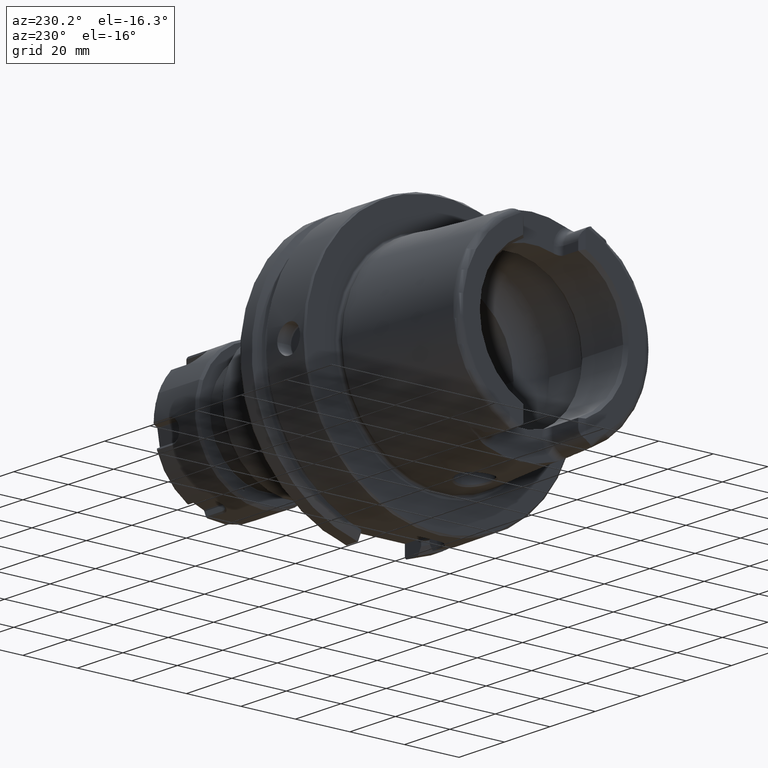
[diagram: clean part render]
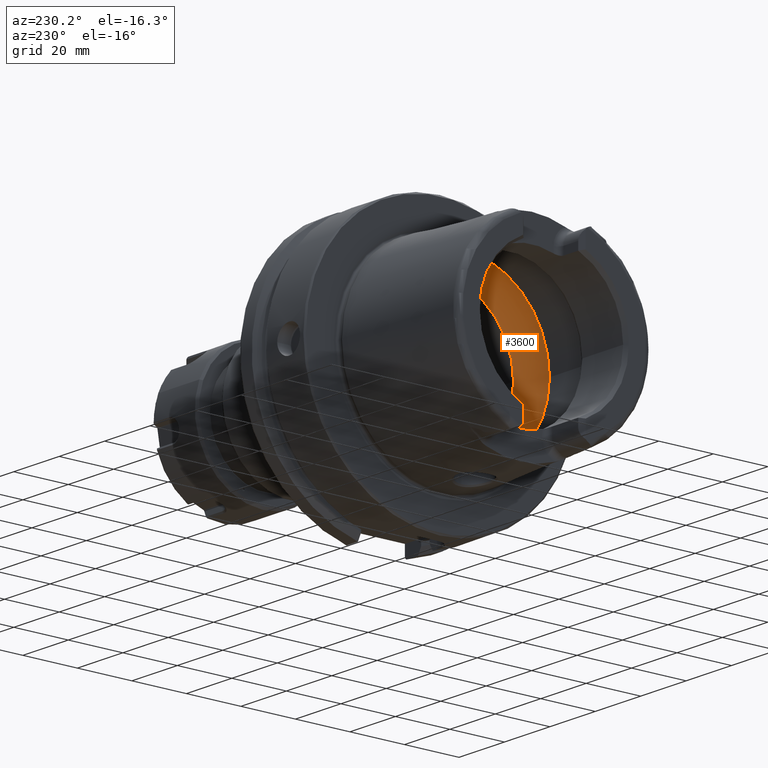
[diagram: same view with one face highlighted and labeled with its STEP entity id]
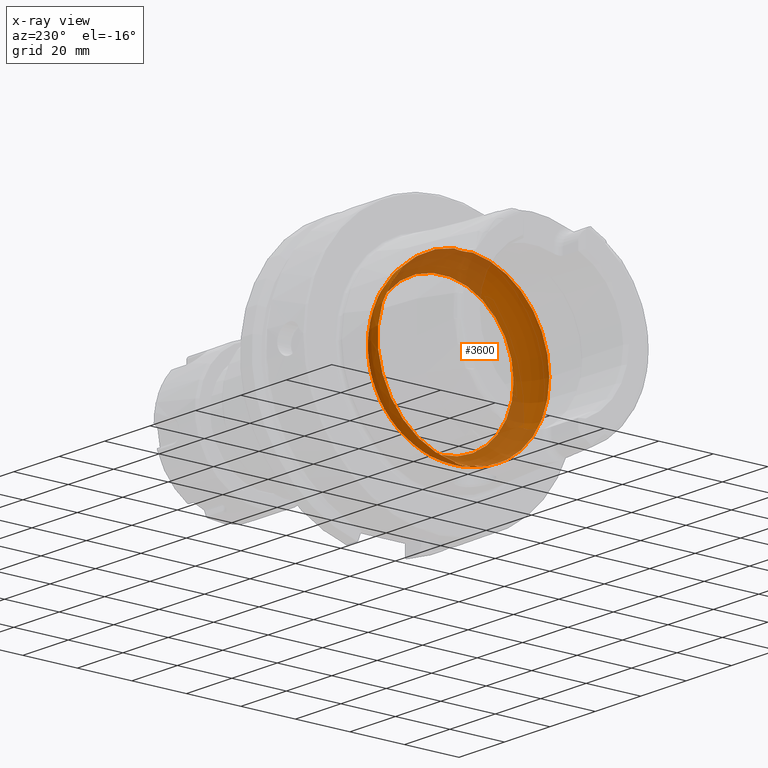
[diagram: x-ray of the same camera — body ghosted, the highlighted face saturated]
A machine part, auxiliary view. The second image highlights one B-rep face of the part: STEP entity #3600.
The next image is the same camera in x-ray: the body ghosted, the highlighted face saturated — about 37% of this face is hidden behind the body in this view.
In plain terms, the highlighted toroidal blend (fillet) surface has major radius 19.5 mm and minor (blend) radius 12 mm.
Its self-contained STEP definition (entity closure, byte-faithful):
#77=B_SPLINE_CURVE_WITH_KNOTS('',3,(#5994,#5995,#5996,#5997,#5998,#5999,
#6000,#6001,#6002,#6003),.UNSPECIFIED.,.F.,.F.,(4,2,2,2,4),(-0.704306975532235,
-0.563368317577754,-0.446049375641081,-0.386534165165624,-0.352317223799877),
 .UNSPECIFIED.);
#79=B_SPLINE_CURVE_WITH_KNOTS('',3,(#6036,#6037,#6038,#6039,#6040,#6041,
#6042,#6043,#6044,#6045),.UNSPECIFIED.,.F.,.F.,(4,2,2,2,4),(-0.352317223799877,
-0.339935606805379,-0.289031750490702,-0.208814277120691,0.),
 .UNSPECIFIED.);
#82=B_SPLINE_CURVE_WITH_KNOTS('',3,(#6186,#6187,#6188,#6189,#6190,#6191,
#6192,#6193,#6194,#6195),.UNSPECIFIED.,.F.,.F.,(4,2,2,2,4),(-0.704306975532881,
-0.563368317578124,-0.446049375641235,-0.386534165165663,-0.352317223799864),
 .UNSPECIFIED.);
#84=B_SPLINE_CURVE_WITH_KNOTS('',3,(#6228,#6229,#6230,#6231,#6232,#6233,
#6234,#6235,#6236,#6237),.UNSPECIFIED.,.F.,.F.,(4,2,2,2,4),(-0.352317223799864,
-0.339935606805357,-0.289031750490679,-0.208814277120681,0.),
 .UNSPECIFIED.);
#307=TOROIDAL_SURFACE('',#3937,19.5,12.);
#376=FACE_OUTER_BOUND('',#588,.T.);
#588=EDGE_LOOP('',(#2577,#2578,#2579,#2580,#2581,#2582,#2583,#2584,#2585,
#2586,#2587,#2588));
#1213=CIRCLE('',#3931,31.5);
#1217=CIRCLE('',#3935,31.5);
#1218=CIRCLE('',#3936,31.5);
#1219=CIRCLE('',#3938,26.5);
#1220=CIRCLE('',#3939,26.5);
#1221=CIRCLE('',#3940,26.5);
#1222=CIRCLE('',#3941,12.);
#1499=VERTEX_POINT('',#5991);
#1500=VERTEX_POINT('',#5993);
#1501=VERTEX_POINT('',#6004);
#1504=VERTEX_POINT('',#6184);
#1505=VERTEX_POINT('',#6185);
#1506=VERTEX_POINT('',#6196);
#1508=VERTEX_POINT('',#6242);
#1512=VERTEX_POINT('',#6254);
#1513=VERTEX_POINT('',#6255);
#1514=VERTEX_POINT('',#6257);
#1911=EDGE_CURVE('',#1500,#1499,#77,.T.);
#1913=EDGE_CURVE('',#1499,#1501,#79,.T.);
#1917=EDGE_CURVE('',#1504,#1505,#82,.T.);
#1919=EDGE_CURVE('',#1505,#1506,#84,.T.);
#1922=EDGE_CURVE('',#1508,#1504,#1213,.T.);
#1927=EDGE_CURVE('',#1501,#1508,#1217,.T.);
#1928=EDGE_CURVE('',#1506,#1500,#1218,.T.);
#1929=EDGE_CURVE('',#1512,#1513,#1219,.T.);
#1930=EDGE_CURVE('',#1514,#1512,#1220,.T.);
#1931=EDGE_CURVE('',#1513,#1514,#1221,.T.);
#1932=EDGE_CURVE('',#1513,#1499,#1222,.T.);
#2577=ORIENTED_EDGE('',*,*,#1929,.F.);
#2578=ORIENTED_EDGE('',*,*,#1930,.F.);
#2579=ORIENTED_EDGE('',*,*,#1931,.F.);
#2580=ORIENTED_EDGE('',*,*,#1932,.T.);
#2581=ORIENTED_EDGE('',*,*,#1913,.T.);
#2582=ORIENTED_EDGE('',*,*,#1927,.T.);
#2583=ORIENTED_EDGE('',*,*,#1922,.T.);
#2584=ORIENTED_EDGE('',*,*,#1917,.T.);
#2585=ORIENTED_EDGE('',*,*,#1919,.T.);
#2586=ORIENTED_EDGE('',*,*,#1928,.T.);
#2587=ORIENTED_EDGE('',*,*,#1911,.T.);
#2588=ORIENTED_EDGE('',*,*,#1932,.F.);
#3600=ADVANCED_FACE('',(#376),#307,.F.);
#3931=AXIS2_PLACEMENT_3D('',#6243,#4526,#4527);
#3935=AXIS2_PLACEMENT_3D('',#6251,#4535,#4536);
#3936=AXIS2_PLACEMENT_3D('',#6252,#4537,#4538);
#3937=AXIS2_PLACEMENT_3D('',#6253,#4539,#4540);
#3938=AXIS2_PLACEMENT_3D('',#6256,#4541,#4542);
#3939=AXIS2_PLACEMENT_3D('',#6258,#4543,#4544);
#3940=AXIS2_PLACEMENT_3D('',#6259,#4545,#4546);
#3941=AXIS2_PLACEMENT_3D('',#6260,#4547,#4548);
#4526=DIRECTION('center_axis',(-1.,0.,0.));
#4527=DIRECTION('ref_axis',(0.,0.,1.));
#4535=DIRECTION('center_axis',(-1.,0.,0.));
#4536=DIRECTION('ref_axis',(0.,0.,1.));
#4537=DIRECTION('center_axis',(-1.,0.,0.));
#4538=DIRECTION('ref_axis',(0.,0.,1.));
#4539=DIRECTION('center_axis',(-1.,0.,0.));
#4540=DIRECTION('ref_axis',(0.,0.,1.));
#4541=DIRECTION('center_axis',(-1.,0.,0.));
#4542=DIRECTION('ref_axis',(0.,0.,1.));
#4543=DIRECTION('center_axis',(-1.,0.,0.));
#4544=DIRECTION('ref_axis',(0.,0.,1.));
#4545=DIRECTION('center_axis',(-1.,0.,0.));
#4546=DIRECTION('ref_axis',(0.,0.,1.));
#4547=DIRECTION('center_axis',(0.,1.,-1.22464679914735E-16));
#4548=DIRECTION('ref_axis',(0.,-1.22464679914735E-16,-1.));
#5991=CARTESIAN_POINT('',(-9.,7.31685969699336E-16,-31.4582607431014));
#5993=CARTESIAN_POINT('',(-10.,3.31662479035542,-31.3249102153542));
#5994=CARTESIAN_POINT('Ctrl Pts',(-10.,3.31662479035541,-31.3249102153542));
#5995=CARTESIAN_POINT('Ctrl Pts',(-9.74127936765642,2.9265887617158,-31.3662065240371));
#5996=CARTESIAN_POINT('Ctrl Pts',(-9.52862762836098,2.50688318043554,-31.3949925235713));
#5997=CARTESIAN_POINT('Ctrl Pts',(-9.23240476385999,1.69927856892452,-31.4324255053116));
#5998=CARTESIAN_POINT('Ctrl Pts',(-9.13392344910017,1.31988974241601,-31.4435429781858));
#5999=CARTESIAN_POINT('Ctrl Pts',(-9.04220079429722,0.737558982965052,-31.4537190708018));
#6000=CARTESIAN_POINT('Ctrl Pts',(-9.02106779489129,0.540134132990375,-31.4559959808551));
#6001=CARTESIAN_POINT('Ctrl Pts',(-9.00325309475839,0.228126507331767,-31.4579131546092));
#6002=CARTESIAN_POINT('Ctrl Pts',(-9.,0.114070256385601,-31.4582607431014));
#6003=CARTESIAN_POINT('Ctrl Pts',(-9.,6.93889390390723E-16,-31.4582607431014));
#6004=CARTESIAN_POINT('',(-10.,-3.31662479035542,-31.3249102153542));
#6036=CARTESIAN_POINT('Ctrl Pts',(-9.,7.01335490450834E-16,-31.4582607431014));
#6037=CARTESIAN_POINT('Ctrl Pts',(-9.,-0.0412770448981316,-31.4582607431014));
#6038=CARTESIAN_POINT('Ctrl Pts',(-9.0004259501075,-0.0825559236689198,
-31.4582151361457));
#6039=CARTESIAN_POINT('Ctrl Pts',(-9.00478075477959,-0.293516919658797,
-31.4577484235034));
#6040=CARTESIAN_POINT('Ctrl Pts',(-9.01548241237086,-0.462981091842713,
-31.4566045938877));
#6041=CARTESIAN_POINT('Ctrl Pts',(-9.06151123201634,-0.897706518793593,
-31.4515940123075));
#6042=CARTESIAN_POINT('Ctrl Pts',(-9.10742242341762,-1.16146830462694,-31.4465573898449));
#6043=CARTESIAN_POINT('Ctrl Pts',(-9.33560100291262,-2.09736419662528,-31.4200720324784));
#6044=CARTESIAN_POINT('Ctrl Pts',(-9.61673416003176,-2.73882979665765,-31.3860861033828));
#6045=CARTESIAN_POINT('Ctrl Pts',(-10.,-3.31662479035541,-31.3249102153542));
#6184=CARTESIAN_POINT('',(-10.,-3.31662479035542,31.3249102153542));
#6185=CARTESIAN_POINT('',(-8.99999999999999,7.75054056598756E-16,31.4582607431014));
#6186=CARTESIAN_POINT('Ctrl Pts',(-9.99999999999999,-3.31662479035541,31.3249102153542));
#6187=CARTESIAN_POINT('Ctrl Pts',(-9.74127936765643,-2.92658876171583,31.3662065240371));
#6188=CARTESIAN_POINT('Ctrl Pts',(-9.52862762836099,-2.50688318043561,31.3949925235713));
#6189=CARTESIAN_POINT('Ctrl Pts',(-9.23240476385996,-1.69927856892447,31.4324255053116));
#6190=CARTESIAN_POINT('Ctrl Pts',(-9.13392344910015,-1.31988974241592,31.4435429781858));
#6191=CARTESIAN_POINT('Ctrl Pts',(-9.04220079429722,-0.737558982965067,
31.4537190708018));
#6192=CARTESIAN_POINT('Ctrl Pts',(-9.02106779489129,-0.540134132990415,
31.4559959808551));
#6193=CARTESIAN_POINT('Ctrl Pts',(-9.00325309475839,-0.228126507331796,
31.4579131546092));
#6194=CARTESIAN_POINT('Ctrl Pts',(-8.99999999999999,-0.114070256385655,
31.4582607431014));
#6195=CARTESIAN_POINT('Ctrl Pts',(-8.99999999999999,7.97972798949331E-16,
31.4582607431014));
#6196=CARTESIAN_POINT('',(-10.,3.31662479035542,31.3249102153542));
#6228=CARTESIAN_POINT('Ctrl Pts',(-8.99999999999999,8.16547887892294E-16,
31.4582607431014));
#6229=CARTESIAN_POINT('Ctrl Pts',(-8.99999999999999,0.0412770448981195,
31.4582607431014));
#6230=CARTESIAN_POINT('Ctrl Pts',(-9.00042595010749,0.0825559236689046,
31.4582151361457));
#6231=CARTESIAN_POINT('Ctrl Pts',(-9.00478075477959,0.293516919658727,31.4577484235034));
#6232=CARTESIAN_POINT('Ctrl Pts',(-9.01548241237085,0.462981091842669,31.4566045938877));
#6233=CARTESIAN_POINT('Ctrl Pts',(-9.06151123201633,0.897706518793561,31.4515940123075));
#6234=CARTESIAN_POINT('Ctrl Pts',(-9.1074224234176,1.16146830462691,31.4465573898449));
#6235=CARTESIAN_POINT('Ctrl Pts',(-9.33560100291262,2.09736419662534,31.4200720324784));
#6236=CARTESIAN_POINT('Ctrl Pts',(-9.61673416003176,2.73882979665767,31.3860861033828));
#6237=CARTESIAN_POINT('Ctrl Pts',(-9.99999999999999,3.3166247903554,31.3249102153542));
#6242=CARTESIAN_POINT('',(-10.,-31.5,3.85763741731416E-15));
#6243=CARTESIAN_POINT('Origin',(-10.,0.,0.));
#6251=CARTESIAN_POINT('Origin',(-10.,0.,0.));
#6252=CARTESIAN_POINT('Origin',(-10.,0.,0.));
#6253=CARTESIAN_POINT('Origin',(-10.,0.,0.));
#6254=CARTESIAN_POINT('',(-0.253205655191035,26.5,0.));
#6255=CARTESIAN_POINT('',(-0.253205655191033,-3.24531401774049E-15,-26.5));
#6256=CARTESIAN_POINT('Origin',(-0.253205655191033,0.,0.));
#6257=CARTESIAN_POINT('',(-0.253205655191033,-26.5,3.24531401774049E-15));
#6258=CARTESIAN_POINT('Origin',(-0.253205655191033,0.,0.));
#6259=CARTESIAN_POINT('Origin',(-0.253205655191033,0.,0.));
#6260=CARTESIAN_POINT('Origin',(-10.,-2.38806125833734E-15,-19.5));